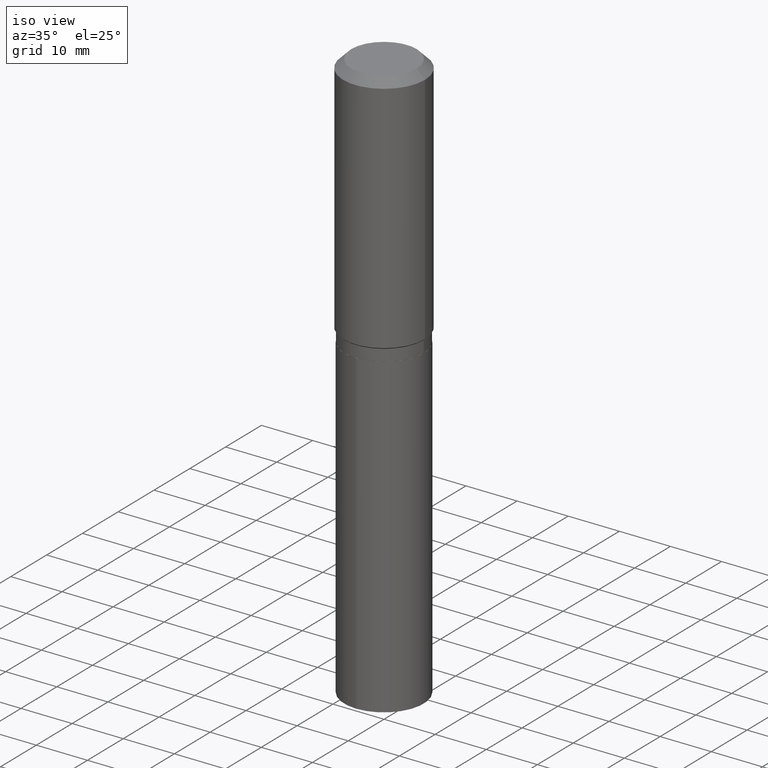
[diagram: clean part render]
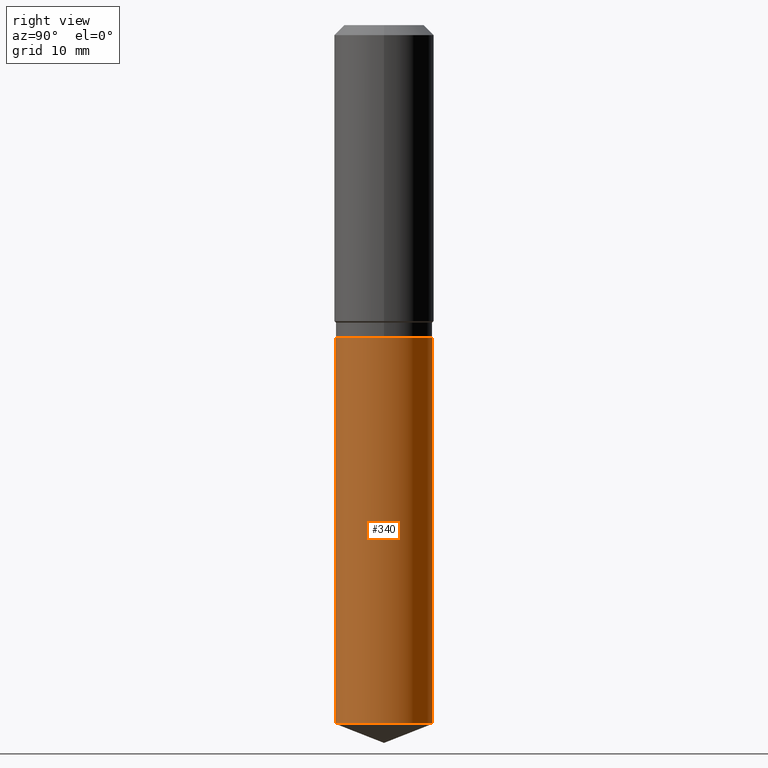
[diagram: tour spotlight — one face highlighted and labeled with its STEP entity id]
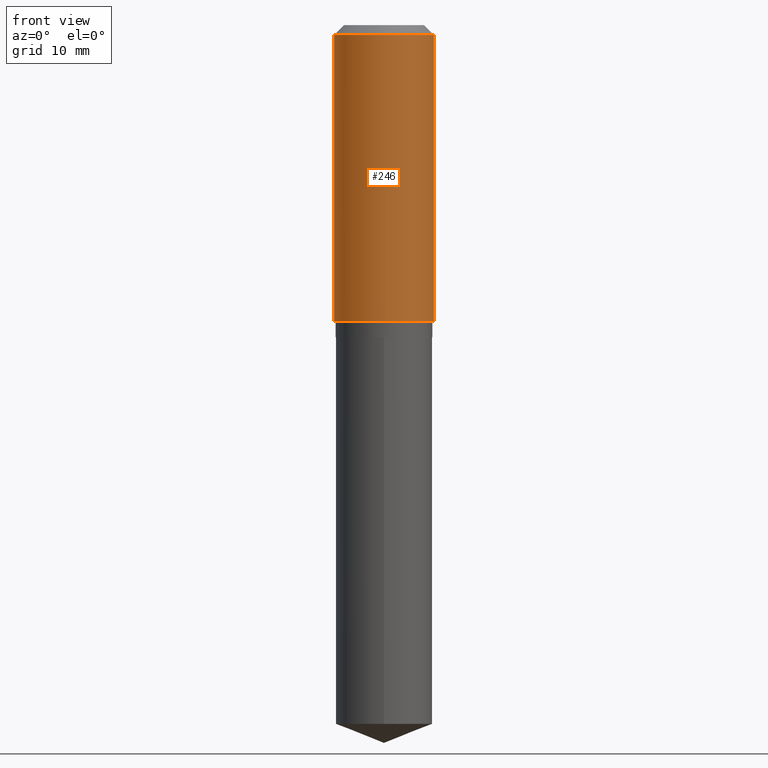
[diagram: tour spotlight — one face highlighted and labeled with its STEP entity id]
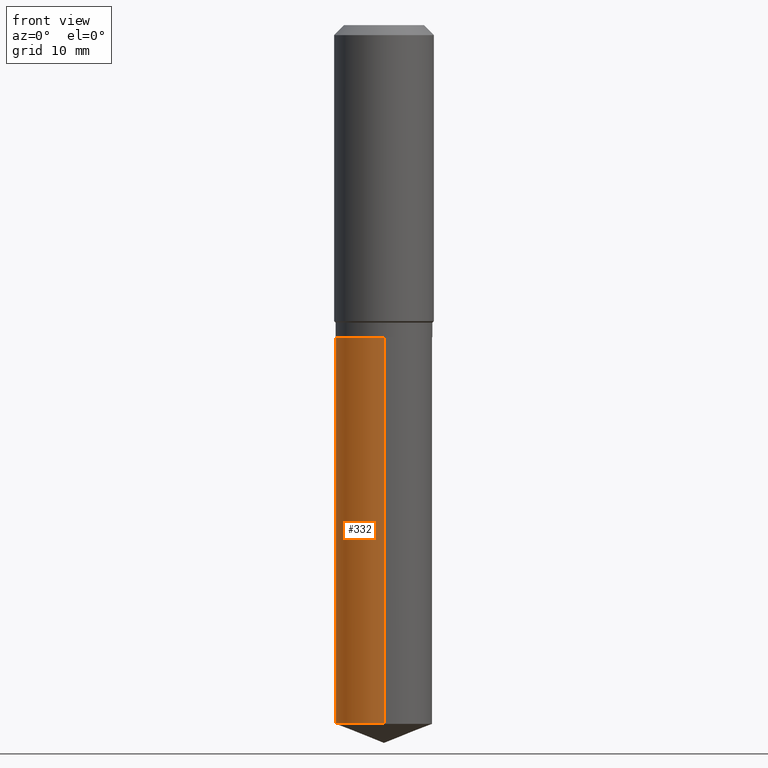
[diagram: tour spotlight — one face highlighted and labeled with its STEP entity id]
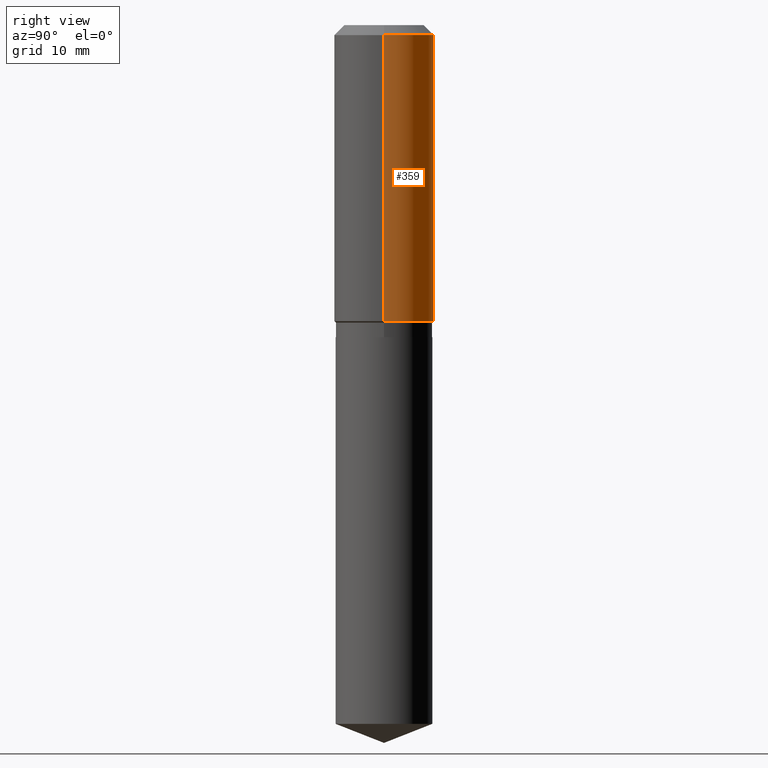
[diagram: tour spotlight — one face highlighted and labeled with its STEP entity id]
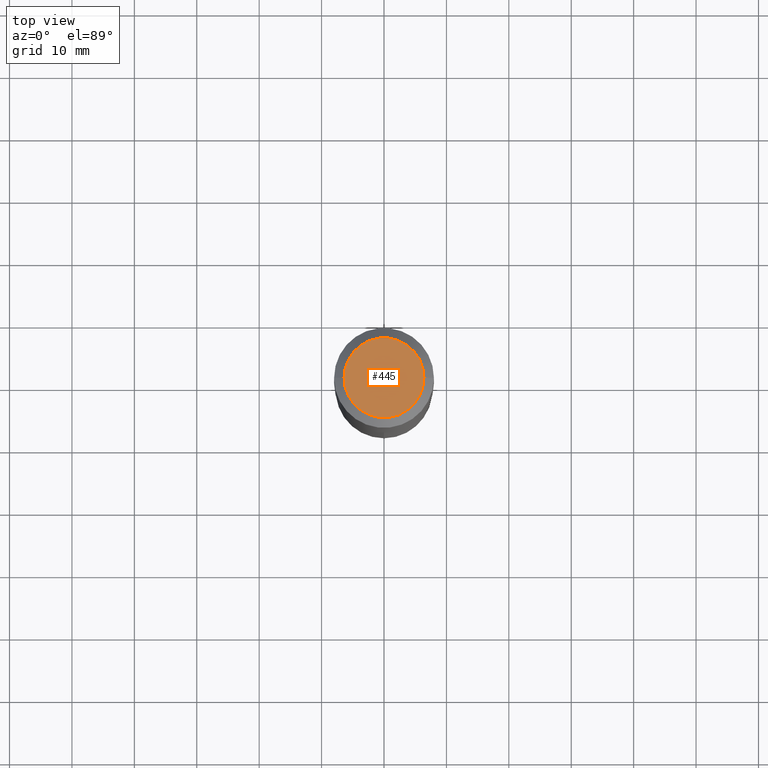
[diagram: tour spotlight — one face highlighted and labeled with its STEP entity id]
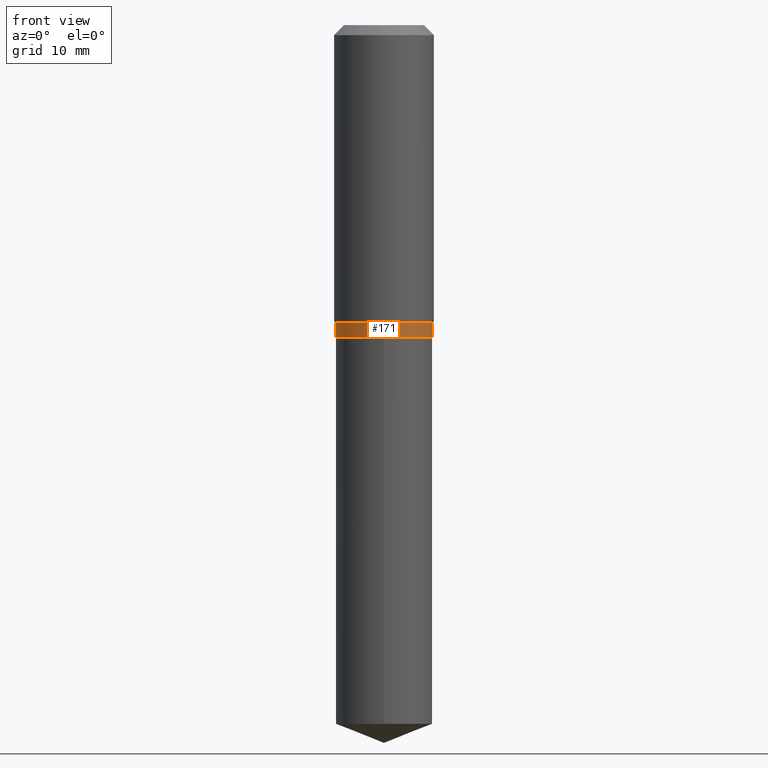
[diagram: tour spotlight — one face highlighted and labeled with its STEP entity id]
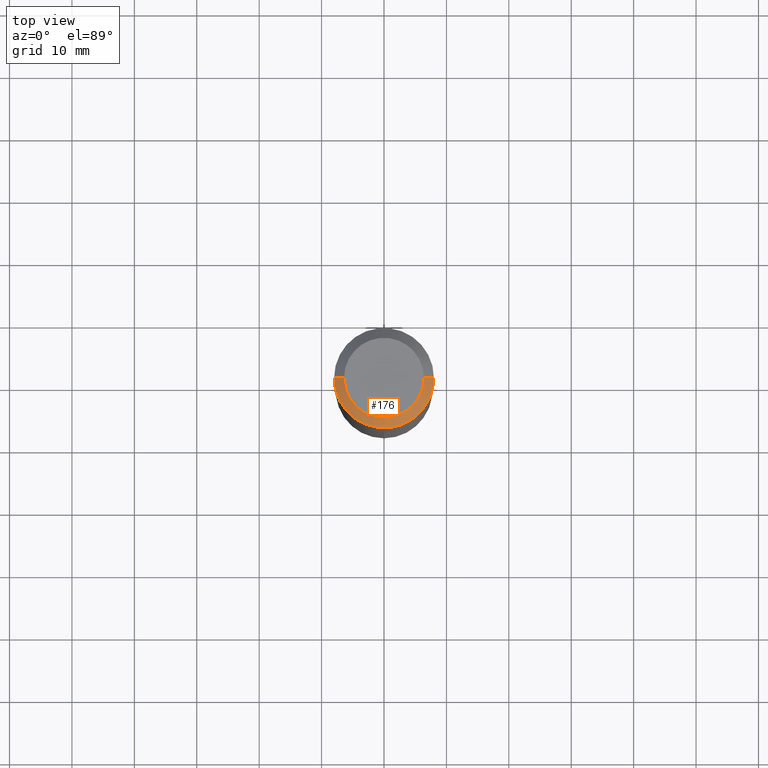
[diagram: tour spotlight — one face highlighted and labeled with its STEP entity id]
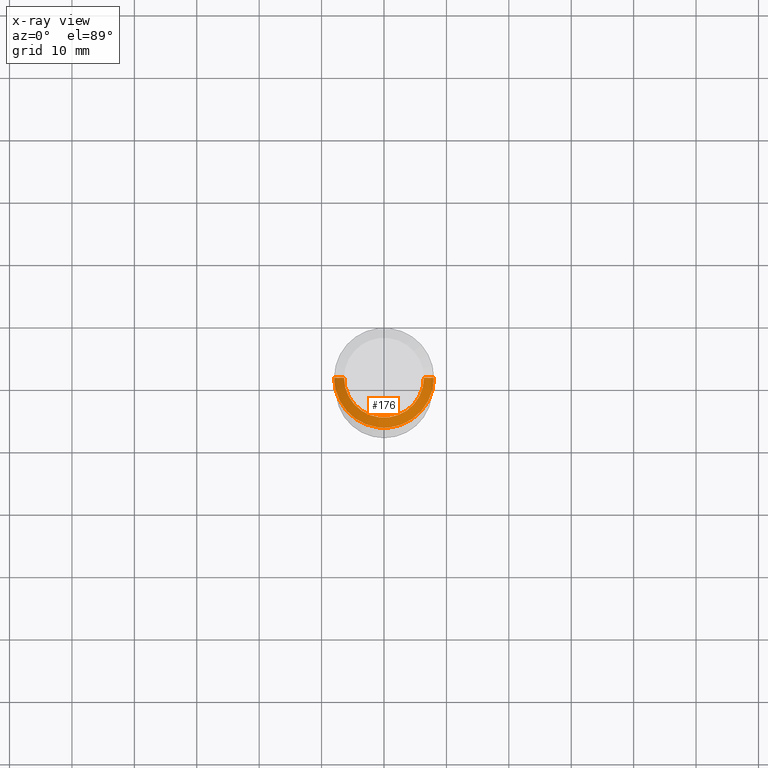
[diagram: x-ray of the same camera — body ghosted, this tour face saturated]
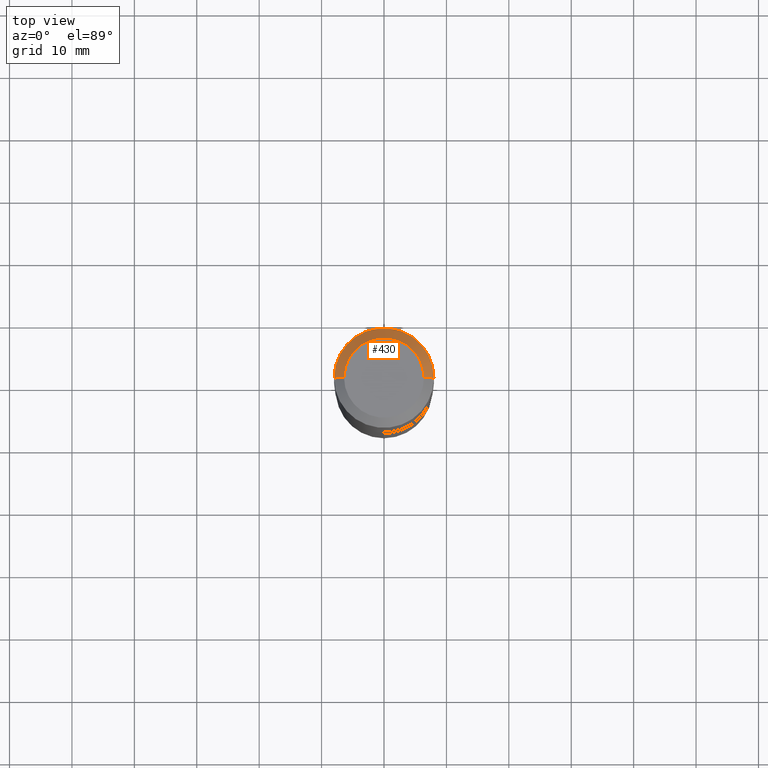
[diagram: tour spotlight — one face highlighted and labeled with its STEP entity id]
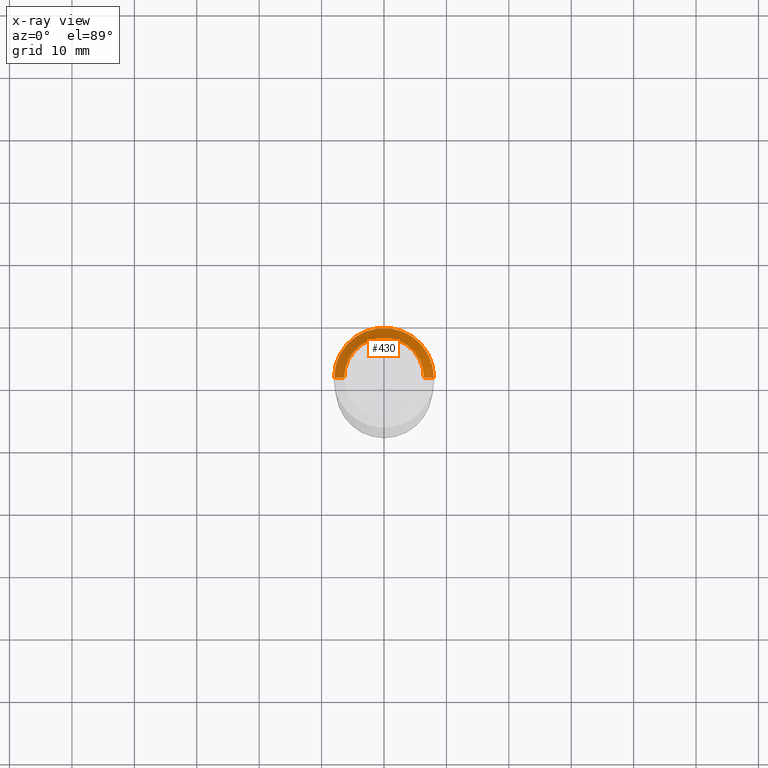
[diagram: x-ray of the same camera — body ghosted, this tour face saturated]
A machine part: a face-by-face anatomy tour. The part has 17 B-rep faces; the first image is the clean iso view, then the 8 largest visible faces are spotlighted one at a time (largest first), each with its STEP entity span.

Face 1 — right view, entity #340. In plain terms, the highlighted cylindrical surface (partial cylindrical patch) has radius 7.7495 mm, axis along (-0, 0, 1).
Definition (entity closure, byte-faithful):
#4 = ORIENTED_EDGE ( 'NONE', *, *, #351, .F. ) ;
#8 = CIRCLE ( 'NONE', #132, 0.3050999999999999823 ) ;
#9 = DIRECTION ( 'NONE',  ( -2.445510039064079162E-29, 3.491422291013670313E-15, 1.000000000000000000 ) ) ;
#31 = VECTOR ( 'NONE', #325, 39.37007874015748143 ) ;
#40 = EDGE_LOOP ( 'NONE', ( #238, #378, #98, #4 ) ) ;
#42 = CARTESIAN_POINT ( 'NONE',  ( 4.813905344975440153E-29, -6.872981015512730130E-15, -1.968499999999999472 ) ) ;
#60 = LINE ( 'NONE', #248, #31 ) ;
#74 = VECTOR ( 'NONE', #480, 39.37007874015748143 ) ;
#87 = FACE_OUTER_BOUND ( 'NONE', #40, .T. ) ;
#98 = ORIENTED_EDGE ( 'NONE', *, *, #200, .F. ) ;
#105 = CIRCLE ( 'NONE', #159, 0.3050999999999999823 ) ;
#131 = DIRECTION ( 'NONE',  ( -6.982962677686265133E-15, -1.000000000000000000, 3.581577179500837048E-15 ) ) ;
#132 = AXIS2_PLACEMENT_3D ( 'NONE', #370, #245, #434 ) ;
#138 = CARTESIAN_POINT ( 'NONE',  ( 2.167865886804172432E-15, 0.3050999999999845502, -4.407417913889882577 ) ) ;
#140 = CARTESIAN_POINT ( 'NONE',  ( -2.130501912961971401E-15, -0.3051000000000153034, -4.407417913889880801 ) ) ;
#147 = CARTESIAN_POINT ( 'NONE',  ( -2.130501912962031354E-15, -0.3051000000000068657, -1.968499999999998362 ) ) ;
#159 = AXIS2_PLACEMENT_3D ( 'NONE', #42, #9, #131 ) ;
#182 = DIRECTION ( 'NONE',  ( -6.982962677686265133E-15, -1.000000000000000000, 3.581577179500837048E-15 ) ) ;
#200 = EDGE_CURVE ( 'NONE', #253, #489, #105, .T. ) ;
#238 = ORIENTED_EDGE ( 'NONE', *, *, #315, .T. ) ;
#240 = EDGE_CURVE ( 'NONE', #345, #489, #60, .T. ) ;
#241 = CYLINDRICAL_SURFACE ( 'NONE', #415, 0.3050999999999999823 ) ;
#245 = DIRECTION ( 'NONE',  ( -2.445510039064079162E-29, 3.491422291013670313E-15, 1.000000000000000000 ) ) ;
#248 = CARTESIAN_POINT ( 'NONE',  ( 2.167865886804113268E-15, 0.3050999999999930989, -1.968500000000000583 ) ) ;
#253 = VERTEX_POINT ( 'NONE', #438 ) ;
#262 = CARTESIAN_POINT ( 'NONE',  ( 2.167865886804173615E-15, 0.3050999999999930989, -1.968500000000000583 ) ) ;
#315 = EDGE_CURVE ( 'NONE', #450, #345, #8, .T. ) ;
#325 = DIRECTION ( 'NONE',  ( -2.445510039064079162E-29, 3.491422291013670313E-15, 1.000000000000000000 ) ) ;
#335 = DIRECTION ( 'NONE',  ( -2.445510039064079162E-29, 3.491422291013670313E-15, 1.000000000000000000 ) ) ;
#340 = ADVANCED_FACE ( 'NONE', ( #87 ), #241, .T. ) ;
#345 = VERTEX_POINT ( 'NONE', #138 ) ;
#351 = EDGE_CURVE ( 'NONE', #450, #253, #446, .T. ) ;
#370 = CARTESIAN_POINT ( 'NONE',  ( 1.077830358784636667E-28, -1.538827338602042201E-14, -4.407417913889881689 ) ) ;
#378 = ORIENTED_EDGE ( 'NONE', *, *, #240, .T. ) ;
#415 = AXIS2_PLACEMENT_3D ( 'NONE', #476, #335, #182 ) ;
#434 = DIRECTION ( 'NONE',  ( -6.982962677686265133E-15, -1.000000000000000000, 3.581577179500837048E-15 ) ) ;
#438 = CARTESIAN_POINT ( 'NONE',  ( -2.130501912962031354E-15, -0.3051000000000068657, -1.968499999999998362 ) ) ;
#446 = LINE ( 'NONE', #147, #74 ) ;
#450 = VERTEX_POINT ( 'NONE', #140 ) ;
#476 = CARTESIAN_POINT ( 'NONE',  ( 4.813905344975440153E-29, -6.872981015512730130E-15, -1.968499999999999472 ) ) ;
#480 = DIRECTION ( 'NONE',  ( -2.445510039064079162E-29, 3.491422291013670313E-15, 1.000000000000000000 ) ) ;
#489 = VERTEX_POINT ( 'NONE', #262 ) ;

Face 2 — front view, entity #246. In plain terms, the highlighted cylindrical surface (partial cylindrical patch) has radius 7.9997 mm, axis along (-0, 0, 1).
Definition (entity closure, byte-faithful):
#15 = DIRECTION ( 'NONE',  ( 1.000000000000000000, -6.982962677686265922E-15, 4.876176775795935232E-29 ) ) ;
#16 = VECTOR ( 'NONE', #50, 39.37007874015748143 ) ;
#18 = CARTESIAN_POINT ( 'NONE',  ( -0.3149500000000002298, -4.281265035544539989E-15, -1.867149999999999421 ) ) ;
#32 = DIRECTION ( 'NONE',  ( -2.445468806185136877E-29, 3.491481338843145188E-15, 1.000000000000000000 ) ) ;
#43 = EDGE_CURVE ( 'NONE', #485, #380, #397, .T. ) ;
#50 = DIRECTION ( 'NONE',  ( -2.445468806185136877E-29, 3.491481338843145188E-15, 1.000000000000000000 ) ) ;
#61 = EDGE_CURVE ( 'NONE', #418, #380, #284, .T. ) ;
#62 = CARTESIAN_POINT ( 'NONE',  ( -0.3149500000000001743, 2.237854346276436774E-15, -1.549218606675783237E-29 ) ) ;
#63 = ORIENTED_EDGE ( 'NONE', *, *, #324, .T. ) ;
#82 = AXIS2_PLACEMENT_3D ( 'NONE', #174, #244, #402 ) ;
#88 = CYLINDRICAL_SURFACE ( 'NONE', #314, 0.3149500000000001743 ) ;
#96 = VECTOR ( 'NONE', #32, 39.37007874015748143 ) ;
#110 = CARTESIAN_POINT ( 'NONE',  ( 0.3149500000000002298, -8.718403477158267422E-15, -1.867149999999999421 ) ) ;
#122 = DIRECTION ( 'NONE',  ( 1.000000000000000000, -6.982962677686266711E-15, 0.000000000000000000 ) ) ;
#174 = CARTESIAN_POINT ( 'NONE',  ( 4.566057081468576714E-29, -6.519119381820977551E-15, -1.867149999999999421 ) ) ;
#197 = AXIS2_PLACEMENT_3D ( 'NONE', #239, #465, #122 ) ;
#208 = DIRECTION ( 'NONE',  ( -2.445468806185136597E-29, 3.491481338843145583E-15, 1.000000000000000000 ) ) ;
#218 = EDGE_LOOP ( 'NONE', ( #330, #63, #301, #281 ) ) ;
#219 = CARTESIAN_POINT ( 'NONE',  ( 0.3149500000000000077, -2.419212504871020909E-15, -0.06299000000000036514 ) ) ;
#239 = CARTESIAN_POINT ( 'NONE',  ( 1.540400801016026329E-30, -2.199284095337310135E-16, -0.06299000000000036514 ) ) ;
#244 = DIRECTION ( 'NONE',  ( -2.445468806185136597E-29, 3.491481338843145583E-15, 1.000000000000000000 ) ) ;
#246 = ADVANCED_FACE ( 'NONE', ( #283 ), #88, .T. ) ;
#252 = CARTESIAN_POINT ( 'NONE',  ( -0.3149500000000000077, -1.131669549400917718E-15, -0.06299000000000036514 ) ) ;
#281 = ORIENTED_EDGE ( 'NONE', *, *, #61, .F. ) ;
#283 = FACE_OUTER_BOUND ( 'NONE', #218, .T. ) ;
#284 = CIRCLE ( 'NONE', #197, 0.3149500000000000077 ) ;
#295 = VERTEX_POINT ( 'NONE', #18 ) ;
#301 = ORIENTED_EDGE ( 'NONE', *, *, #43, .T. ) ;
#304 = CIRCLE ( 'NONE', #82, 0.3149500000000002298 ) ;
#314 = AXIS2_PLACEMENT_3D ( 'NONE', #401, #208, #15 ) ;
#324 = EDGE_CURVE ( 'NONE', #295, #485, #304, .T. ) ;
#330 = ORIENTED_EDGE ( 'NONE', *, *, #346, .F. ) ;
#337 = LINE ( 'NONE', #62, #96 ) ;
#346 = EDGE_CURVE ( 'NONE', #295, #418, #337, .T. ) ;
#380 = VERTEX_POINT ( 'NONE', #219 ) ;
#397 = LINE ( 'NONE', #429, #16 ) ;
#401 = CARTESIAN_POINT ( 'NONE',  ( 0.000000000000000000, 0.000000000000000000, 0.000000000000000000 ) ) ;
#402 = DIRECTION ( 'NONE',  ( 1.000000000000000000, -6.982962677686268288E-15, 0.000000000000000000 ) ) ;
#418 = VERTEX_POINT ( 'NONE', #252 ) ;
#429 = CARTESIAN_POINT ( 'NONE',  ( 0.3149500000000001743, -2.199284095337290660E-15, 1.535751875536930690E-29 ) ) ;
#465 = DIRECTION ( 'NONE',  ( -2.445468806185136597E-29, 3.491481338843145583E-15, 1.000000000000000000 ) ) ;
#485 = VERTEX_POINT ( 'NONE', #110 ) ;

Face 3 — front view, entity #332. In plain terms, the highlighted cylindrical surface (partial cylindrical patch) has radius 7.7495 mm, axis along (-0, 0, 1).
Definition (entity closure, byte-faithful):
#21 = CYLINDRICAL_SURFACE ( 'NONE', #259, 0.3050999999999999823 ) ;
#30 = ORIENTED_EDGE ( 'NONE', *, *, #483, .F. ) ;
#31 = VECTOR ( 'NONE', #325, 39.37007874015748143 ) ;
#36 = DIRECTION ( 'NONE',  ( -2.445510039064079162E-29, 3.491422291013670313E-15, 1.000000000000000000 ) ) ;
#60 = LINE ( 'NONE', #248, #31 ) ;
#74 = VECTOR ( 'NONE', #480, 39.37007874015748143 ) ;
#84 = AXIS2_PLACEMENT_3D ( 'NONE', #307, #36, #458 ) ;
#116 = EDGE_LOOP ( 'NONE', ( #408, #220, #336, #30 ) ) ;
#129 = EDGE_CURVE ( 'NONE', #345, #450, #180, .T. ) ;
#138 = CARTESIAN_POINT ( 'NONE',  ( 2.167865886804172432E-15, 0.3050999999999845502, -4.407417913889882577 ) ) ;
#140 = CARTESIAN_POINT ( 'NONE',  ( -2.130501912961971401E-15, -0.3051000000000153034, -4.407417913889880801 ) ) ;
#147 = CARTESIAN_POINT ( 'NONE',  ( -2.130501912962031354E-15, -0.3051000000000068657, -1.968499999999998362 ) ) ;
#172 = CARTESIAN_POINT ( 'NONE',  ( 4.813905344975440153E-29, -6.872981015512730130E-15, -1.968499999999999472 ) ) ;
#180 = CIRCLE ( 'NONE', #258, 0.3050999999999999823 ) ;
#189 = CIRCLE ( 'NONE', #84, 0.3050999999999999823 ) ;
#199 = CARTESIAN_POINT ( 'NONE',  ( 1.077830358784636667E-28, -1.538827338602042201E-14, -4.407417913889881689 ) ) ;
#220 = ORIENTED_EDGE ( 'NONE', *, *, #129, .T. ) ;
#240 = EDGE_CURVE ( 'NONE', #345, #489, #60, .T. ) ;
#248 = CARTESIAN_POINT ( 'NONE',  ( 2.167865886804113268E-15, 0.3050999999999930989, -1.968500000000000583 ) ) ;
#253 = VERTEX_POINT ( 'NONE', #438 ) ;
#258 = AXIS2_PLACEMENT_3D ( 'NONE', #199, #350, #461 ) ;
#259 = AXIS2_PLACEMENT_3D ( 'NONE', #172, #328, #474 ) ;
#262 = CARTESIAN_POINT ( 'NONE',  ( 2.167865886804173615E-15, 0.3050999999999930989, -1.968500000000000583 ) ) ;
#307 = CARTESIAN_POINT ( 'NONE',  ( 4.813905344975440153E-29, -6.872981015512730130E-15, -1.968499999999999472 ) ) ;
#325 = DIRECTION ( 'NONE',  ( -2.445510039064079162E-29, 3.491422291013670313E-15, 1.000000000000000000 ) ) ;
#328 = DIRECTION ( 'NONE',  ( -2.445510039064079162E-29, 3.491422291013670313E-15, 1.000000000000000000 ) ) ;
#332 = ADVANCED_FACE ( 'NONE', ( #367 ), #21, .T. ) ;
#336 = ORIENTED_EDGE ( 'NONE', *, *, #351, .T. ) ;
#345 = VERTEX_POINT ( 'NONE', #138 ) ;
#350 = DIRECTION ( 'NONE',  ( -2.445510039064079162E-29, 3.491422291013670313E-15, 1.000000000000000000 ) ) ;
#351 = EDGE_CURVE ( 'NONE', #450, #253, #446, .T. ) ;
#367 = FACE_OUTER_BOUND ( 'NONE', #116, .T. ) ;
#408 = ORIENTED_EDGE ( 'NONE', *, *, #240, .F. ) ;
#438 = CARTESIAN_POINT ( 'NONE',  ( -2.130501912962031354E-15, -0.3051000000000068657, -1.968499999999998362 ) ) ;
#446 = LINE ( 'NONE', #147, #74 ) ;
#450 = VERTEX_POINT ( 'NONE', #140 ) ;
#458 = DIRECTION ( 'NONE',  ( -6.982962677686265133E-15, -1.000000000000000000, 3.581577179500837048E-15 ) ) ;
#461 = DIRECTION ( 'NONE',  ( -6.982962677686265133E-15, -1.000000000000000000, 3.581577179500837048E-15 ) ) ;
#474 = DIRECTION ( 'NONE',  ( -6.982962677686265133E-15, -1.000000000000000000, 3.581577179500837048E-15 ) ) ;
#480 = DIRECTION ( 'NONE',  ( -2.445510039064079162E-29, 3.491422291013670313E-15, 1.000000000000000000 ) ) ;
#483 = EDGE_CURVE ( 'NONE', #489, #253, #189, .T. ) ;
#489 = VERTEX_POINT ( 'NONE', #262 ) ;

Face 4 — right view, entity #359. In plain terms, the highlighted cylindrical surface (partial cylindrical patch) has radius 7.9997 mm, axis along (-0, 0, 1).
Definition (entity closure, byte-faithful):
#16 = VECTOR ( 'NONE', #50, 39.37007874015748143 ) ;
#18 = CARTESIAN_POINT ( 'NONE',  ( -0.3149500000000002298, -4.281265035544539989E-15, -1.867149999999999421 ) ) ;
#32 = DIRECTION ( 'NONE',  ( -2.445468806185136877E-29, 3.491481338843145188E-15, 1.000000000000000000 ) ) ;
#43 = EDGE_CURVE ( 'NONE', #485, #380, #397, .T. ) ;
#50 = DIRECTION ( 'NONE',  ( -2.445468806185136877E-29, 3.491481338843145188E-15, 1.000000000000000000 ) ) ;
#56 = AXIS2_PLACEMENT_3D ( 'NONE', #311, #235, #358 ) ;
#62 = CARTESIAN_POINT ( 'NONE',  ( -0.3149500000000001743, 2.237854346276436774E-15, -1.549218606675783237E-29 ) ) ;
#65 = EDGE_LOOP ( 'NONE', ( #192, #100, #225, #141 ) ) ;
#72 = DIRECTION ( 'NONE',  ( 1.000000000000000000, -6.982962677686265922E-15, 4.876176775795935232E-29 ) ) ;
#96 = VECTOR ( 'NONE', #32, 39.37007874015748143 ) ;
#100 = ORIENTED_EDGE ( 'NONE', *, *, #346, .T. ) ;
#110 = CARTESIAN_POINT ( 'NONE',  ( 0.3149500000000002298, -8.718403477158267422E-15, -1.867149999999999421 ) ) ;
#117 = EDGE_CURVE ( 'NONE', #485, #295, #205, .T. ) ;
#141 = ORIENTED_EDGE ( 'NONE', *, *, #43, .F. ) ;
#150 = EDGE_CURVE ( 'NONE', #380, #418, #342, .T. ) ;
#192 = ORIENTED_EDGE ( 'NONE', *, *, #117, .T. ) ;
#205 = CIRCLE ( 'NONE', #56, 0.3149500000000002298 ) ;
#219 = CARTESIAN_POINT ( 'NONE',  ( 0.3149500000000000077, -2.419212504871020909E-15, -0.06299000000000036514 ) ) ;
#223 = CYLINDRICAL_SURFACE ( 'NONE', #305, 0.3149500000000001743 ) ;
#225 = ORIENTED_EDGE ( 'NONE', *, *, #150, .F. ) ;
#235 = DIRECTION ( 'NONE',  ( -2.445468806185136597E-29, 3.491481338843145583E-15, 1.000000000000000000 ) ) ;
#252 = CARTESIAN_POINT ( 'NONE',  ( -0.3149500000000000077, -1.131669549400917718E-15, -0.06299000000000036514 ) ) ;
#295 = VERTEX_POINT ( 'NONE', #18 ) ;
#305 = AXIS2_PLACEMENT_3D ( 'NONE', #409, #411, #72 ) ;
#311 = CARTESIAN_POINT ( 'NONE',  ( 4.566057081468576714E-29, -6.519119381820977551E-15, -1.867149999999999421 ) ) ;
#313 = CARTESIAN_POINT ( 'NONE',  ( 1.540400801016026329E-30, -2.199284095337310135E-16, -0.06299000000000036514 ) ) ;
#337 = LINE ( 'NONE', #62, #96 ) ;
#342 = CIRCLE ( 'NONE', #469, 0.3149500000000000077 ) ;
#346 = EDGE_CURVE ( 'NONE', #295, #418, #337, .T. ) ;
#353 = DIRECTION ( 'NONE',  ( 1.000000000000000000, -6.982962677686266711E-15, 0.000000000000000000 ) ) ;
#358 = DIRECTION ( 'NONE',  ( 1.000000000000000000, -6.982962677686268288E-15, 0.000000000000000000 ) ) ;
#359 = ADVANCED_FACE ( 'NONE', ( #373 ), #223, .T. ) ;
#373 = FACE_OUTER_BOUND ( 'NONE', #65, .T. ) ;
#380 = VERTEX_POINT ( 'NONE', #219 ) ;
#393 = DIRECTION ( 'NONE',  ( -2.445468806185136597E-29, 3.491481338843145583E-15, 1.000000000000000000 ) ) ;
#397 = LINE ( 'NONE', #429, #16 ) ;
#409 = CARTESIAN_POINT ( 'NONE',  ( 0.000000000000000000, 0.000000000000000000, 0.000000000000000000 ) ) ;
#411 = DIRECTION ( 'NONE',  ( -2.445468806185136597E-29, 3.491481338843145583E-15, 1.000000000000000000 ) ) ;
#418 = VERTEX_POINT ( 'NONE', #252 ) ;
#429 = CARTESIAN_POINT ( 'NONE',  ( 0.3149500000000001743, -2.199284095337290660E-15, 1.535751875536930690E-29 ) ) ;
#469 = AXIS2_PLACEMENT_3D ( 'NONE', #313, #393, #353 ) ;
#485 = VERTEX_POINT ( 'NONE', #110 ) ;

Face 5 — top view, entity #445. In plain terms, the highlighted planar face has unit normal (0, -0, -1).
Definition (entity closure, byte-faithful):
#2 = CARTESIAN_POINT ( 'NONE',  ( 0.2519600000000000173, -2.054606664725195058E-15, 3.855188123729206640E-18 ) ) ;
#6 = ORIENTED_EDGE ( 'NONE', *, *, #400, .T. ) ;
#29 = ORIENTED_EDGE ( 'NONE', *, *, #86, .T. ) ;
#41 = DIRECTION ( 'NONE',  ( 1.000000000000000000, -6.982962677686266711E-15, 4.876115136096691995E-29 ) ) ;
#58 = AXIS2_PLACEMENT_3D ( 'NONE', #154, #201, #41 ) ;
#86 = EDGE_CURVE ( 'NONE', #179, #343, #269, .T. ) ;
#154 = CARTESIAN_POINT ( 'NONE',  ( -9.427742298522569579E-47, 1.346031739168368629E-32, 3.855188123715871501E-18 ) ) ;
#173 = AXIS2_PLACEMENT_3D ( 'NONE', #419, #186, #299 ) ;
#179 = VERTEX_POINT ( 'NONE', #234 ) ;
#186 = DIRECTION ( 'NONE',  ( -2.445468806185136597E-29, 3.491481338843145583E-15, 1.000000000000000000 ) ) ;
#201 = DIRECTION ( 'NONE',  ( -2.445468806185136597E-29, 3.491481338843145583E-15, 1.000000000000000000 ) ) ;
#206 = CIRCLE ( 'NONE', #173, 0.2519600000000000173 ) ;
#217 = FACE_OUTER_BOUND ( 'NONE', #448, .T. ) ;
#221 = CARTESIAN_POINT ( 'NONE',  ( -4.713871149261284790E-47, 6.730158695841843144E-33, 1.927594061857935750E-18 ) ) ;
#234 = CARTESIAN_POINT ( 'NONE',  ( -0.2519600000000000173, 1.869391481036695286E-15, 3.855188123703182704E-18 ) ) ;
#269 = CIRCLE ( 'NONE', #58, 0.2519600000000000173 ) ;
#299 = DIRECTION ( 'NONE',  ( 1.000000000000000000, -6.982962677686266711E-15, 4.876115136096691995E-29 ) ) ;
#343 = VERTEX_POINT ( 'NONE', #2 ) ;
#354 = AXIS2_PLACEMENT_3D ( 'NONE', #221, #454, #449 ) ;
#377 = PLANE ( 'NONE',  #354 ) ;
#400 = EDGE_CURVE ( 'NONE', #343, #179, #206, .T. ) ;
#419 = CARTESIAN_POINT ( 'NONE',  ( -9.427742298522569579E-47, 1.346031739168368629E-32, 3.855188123715871501E-18 ) ) ;
#445 = ADVANCED_FACE ( 'NONE', ( #217 ), #377, .F. ) ;
#448 = EDGE_LOOP ( 'NONE', ( #29, #6 ) ) ;
#449 = DIRECTION ( 'NONE',  ( -1.000000000000000000, 6.982962677686265922E-15, -4.876176775795935793E-29 ) ) ;
#454 = DIRECTION ( 'NONE',  ( 2.438088387897960049E-29, -3.491481338843145188E-15, -1.000000000000000000 ) ) ;

Face 6 — front view, entity #171. In plain terms, the highlighted cylindrical surface (partial cylindrical patch) has radius 7.7495 mm, axis along (-0, 0, 1).
Definition (entity closure, byte-faithful):
#24 = EDGE_CURVE ( 'NONE', #447, #222, #321, .T. ) ;
#54 = VECTOR ( 'NONE', #422, 39.37007874015748143 ) ;
#73 = DIRECTION ( 'NONE',  ( 1.000000000000000000, -6.982962677686268288E-15, 0.000000000000000000 ) ) ;
#91 = EDGE_CURVE ( 'NONE', #447, #175, #271, .T. ) ;
#94 = EDGE_CURVE ( 'NONE', #175, #348, #441, .T. ) ;
#115 = DIRECTION ( 'NONE',  ( 1.000000000000000000, -6.982962677686265133E-15, 0.000000000000000000 ) ) ;
#118 = AXIS2_PLACEMENT_3D ( 'NONE', #263, #420, #73 ) ;
#123 = LINE ( 'NONE', #267, #54 ) ;
#135 = EDGE_CURVE ( 'NONE', #222, #348, #123, .T. ) ;
#162 = CARTESIAN_POINT ( 'NONE',  ( -0.3050999999999999823, 2.167865886804065542E-15, -1.500767096036771618E-29 ) ) ;
#165 = FACE_OUTER_BOUND ( 'NONE', #417, .T. ) ;
#167 = AXIS2_PLACEMENT_3D ( 'NONE', #320, #232, #425 ) ;
#171 = ADVANCED_FACE ( 'NONE', ( #165 ), #319, .T. ) ;
#175 = VERTEX_POINT ( 'NONE', #468 ) ;
#184 = CARTESIAN_POINT ( 'NONE',  ( -0.3050999999999999823, -4.544506987121881132E-15, -1.967999999999999527 ) ) ;
#203 = DIRECTION ( 'NONE',  ( -2.445468806185136597E-29, 3.491481338843145583E-15, 1.000000000000000000 ) ) ;
#204 = ORIENTED_EDGE ( 'NONE', *, *, #135, .T. ) ;
#213 = AXIS2_PLACEMENT_3D ( 'NONE', #467, #203, #115 ) ;
#215 = CARTESIAN_POINT ( 'NONE',  ( 0.3050999999999999823, -9.001737187805389679E-15, -1.967999999999999527 ) ) ;
#222 = VERTEX_POINT ( 'NONE', #215 ) ;
#232 = DIRECTION ( 'NONE',  ( -2.445468806185136597E-29, 3.491481338843145583E-15, 1.000000000000000000 ) ) ;
#250 = CARTESIAN_POINT ( 'NONE',  ( 0.3050999999999999823, -8.684012385970661829E-15, -1.876999999999999780 ) ) ;
#263 = CARTESIAN_POINT ( 'NONE',  ( 4.812682610572347912E-29, -6.871235274843308626E-15, -1.967999999999999527 ) ) ;
#267 = CARTESIAN_POINT ( 'NONE',  ( 0.3050999999999999823, -2.130501912962079869E-15, 1.487721534295339875E-29 ) ) ;
#271 = LINE ( 'NONE', #162, #399 ) ;
#319 = CYLINDRICAL_SURFACE ( 'NONE', #167, 0.3050999999999999823 ) ;
#320 = CARTESIAN_POINT ( 'NONE',  ( 0.000000000000000000, 0.000000000000000000, 0.000000000000000000 ) ) ;
#321 = CIRCLE ( 'NONE', #118, 0.3050999999999999823 ) ;
#348 = VERTEX_POINT ( 'NONE', #250 ) ;
#399 = VECTOR ( 'NONE', #463, 39.37007874015748143 ) ;
#412 = ORIENTED_EDGE ( 'NONE', *, *, #24, .T. ) ;
#417 = EDGE_LOOP ( 'NONE', ( #482, #412, #204, #486 ) ) ;
#420 = DIRECTION ( 'NONE',  ( -2.445468806185136597E-29, 3.491481338843145583E-15, 1.000000000000000000 ) ) ;
#422 = DIRECTION ( 'NONE',  ( -2.445468806185136877E-29, 3.491481338843145188E-15, 1.000000000000000000 ) ) ;
#425 = DIRECTION ( 'NONE',  ( 1.000000000000000000, -6.982962677686266711E-15, 4.876176775795935793E-29 ) ) ;
#441 = CIRCLE ( 'NONE', #213, 0.3050999999999999823 ) ;
#447 = VERTEX_POINT ( 'NONE', #184 ) ;
#463 = DIRECTION ( 'NONE',  ( -2.445468806185136877E-29, 3.491481338843145188E-15, 1.000000000000000000 ) ) ;
#467 = CARTESIAN_POINT ( 'NONE',  ( 4.590144949209500643E-29, -6.553510473008583144E-15, -1.876999999999999780 ) ) ;
#468 = CARTESIAN_POINT ( 'NONE',  ( -0.3050999999999999823, -4.544506987121881132E-15, -1.876999999999999780 ) ) ;
#482 = ORIENTED_EDGE ( 'NONE', *, *, #91, .F. ) ;
#486 = ORIENTED_EDGE ( 'NONE', *, *, #94, .F. ) ;

Face 7 — top view, entity #176. An x-ray twin of the same camera follows (body ghosted, this face saturated) — the face is partly hidden behind the body. In plain terms, the highlighted conical surface has half-angle 45 deg.
Definition (entity closure, byte-faithful):
#1 = AXIS2_PLACEMENT_3D ( 'NONE', #12, #79, #279 ) ;
#2 = CARTESIAN_POINT ( 'NONE',  ( 0.2519600000000000173, -2.054606664725195058E-15, 3.855188123729206640E-18 ) ) ;
#10 = EDGE_CURVE ( 'NONE', #343, #380, #152, .T. ) ;
#12 = CARTESIAN_POINT ( 'NONE',  ( 1.540400801016026329E-30, -2.199284095337310135E-16, -0.06299000000000036514 ) ) ;
#37 = ORIENTED_EDGE ( 'NONE', *, *, #61, .T. ) ;
#41 = DIRECTION ( 'NONE',  ( 1.000000000000000000, -6.982962677686266711E-15, 4.876115136096691995E-29 ) ) ;
#58 = AXIS2_PLACEMENT_3D ( 'NONE', #154, #201, #41 ) ;
#61 = EDGE_CURVE ( 'NONE', #418, #380, #284, .T. ) ;
#69 = EDGE_LOOP ( 'NONE', ( #306, #297, #490, #37 ) ) ;
#79 = DIRECTION ( 'NONE',  ( 2.445468806185136597E-29, -3.491481338843145583E-15, -1.000000000000000000 ) ) ;
#86 = EDGE_CURVE ( 'NONE', #179, #343, #269, .T. ) ;
#122 = DIRECTION ( 'NONE',  ( 1.000000000000000000, -6.982962677686266711E-15, 0.000000000000000000 ) ) ;
#136 = LINE ( 'NONE', #242, #394 ) ;
#152 = LINE ( 'NONE', #309, #361 ) ;
#154 = CARTESIAN_POINT ( 'NONE',  ( -9.427742298522569579E-47, 1.346031739168368629E-32, 3.855188123715871501E-18 ) ) ;
#170 = DIRECTION ( 'NONE',  ( -0.7071067811865453523, 2.468850131082234184E-15, -0.7071067811865496822 ) ) ;
#176 = ADVANCED_FACE ( 'NONE', ( #391 ), #188, .T. ) ;
#179 = VERTEX_POINT ( 'NONE', #234 ) ;
#188 = CONICAL_SURFACE ( 'NONE', #1, 0.3149500000000000077, 0.7853981633974452814 ) ;
#197 = AXIS2_PLACEMENT_3D ( 'NONE', #239, #465, #122 ) ;
#201 = DIRECTION ( 'NONE',  ( -2.445468806185136597E-29, 3.491481338843145583E-15, 1.000000000000000000 ) ) ;
#219 = CARTESIAN_POINT ( 'NONE',  ( 0.3149500000000000077, -2.419212504871020909E-15, -0.06299000000000036514 ) ) ;
#230 = EDGE_CURVE ( 'NONE', #179, #418, #136, .T. ) ;
#234 = CARTESIAN_POINT ( 'NONE',  ( -0.2519600000000000173, 1.869391481036695286E-15, 3.855188123703182704E-18 ) ) ;
#239 = CARTESIAN_POINT ( 'NONE',  ( 1.540400801016026329E-30, -2.199284095337310135E-16, -0.06299000000000036514 ) ) ;
#242 = CARTESIAN_POINT ( 'NONE',  ( -0.3149500000000000077, 1.979355685803558833E-15, -0.06299000000000036514 ) ) ;
#252 = CARTESIAN_POINT ( 'NONE',  ( -0.3149500000000000077, -1.131669549400917718E-15, -0.06299000000000036514 ) ) ;
#269 = CIRCLE ( 'NONE', #58, 0.2519600000000000173 ) ;
#279 = DIRECTION ( 'NONE',  ( -1.000000000000000000, 6.982962677686266711E-15, 0.000000000000000000 ) ) ;
#284 = CIRCLE ( 'NONE', #197, 0.3149500000000000077 ) ;
#297 = ORIENTED_EDGE ( 'NONE', *, *, #86, .F. ) ;
#306 = ORIENTED_EDGE ( 'NONE', *, *, #10, .F. ) ;
#309 = CARTESIAN_POINT ( 'NONE',  ( 0.3149500000000000077, -2.380642253931875190E-15, -0.06299000000000036514 ) ) ;
#343 = VERTEX_POINT ( 'NONE', #2 ) ;
#361 = VECTOR ( 'NONE', #459, 39.37007874015748143 ) ;
#380 = VERTEX_POINT ( 'NONE', #219 ) ;
#391 = FACE_OUTER_BOUND ( 'NONE', #69, .T. ) ;
#394 = VECTOR ( 'NONE', #170, 39.37007874015748143 ) ;
#418 = VERTEX_POINT ( 'NONE', #252 ) ;
#459 = DIRECTION ( 'NONE',  ( 0.7071067811865453523, -7.319954787623248157E-15, -0.7071067811865496822 ) ) ;
#465 = DIRECTION ( 'NONE',  ( -2.445468806185136597E-29, 3.491481338843145583E-15, 1.000000000000000000 ) ) ;
#490 = ORIENTED_EDGE ( 'NONE', *, *, #230, .T. ) ;

Face 8 — top view, entity #430. An x-ray twin of the same camera follows (body ghosted, this face saturated) — the face is partly hidden behind the body. In plain terms, the highlighted conical surface has half-angle 45 deg.
Definition (entity closure, byte-faithful):
#2 = CARTESIAN_POINT ( 'NONE',  ( 0.2519600000000000173, -2.054606664725195058E-15, 3.855188123729206640E-18 ) ) ;
#10 = EDGE_CURVE ( 'NONE', #343, #380, #152, .T. ) ;
#104 = ORIENTED_EDGE ( 'NONE', *, *, #230, .F. ) ;
#136 = LINE ( 'NONE', #242, #394 ) ;
#144 = CARTESIAN_POINT ( 'NONE',  ( 1.540400801016026329E-30, -2.199284095337310135E-16, -0.06299000000000036514 ) ) ;
#145 = EDGE_LOOP ( 'NONE', ( #443, #156, #191, #104 ) ) ;
#150 = EDGE_CURVE ( 'NONE', #380, #418, #342, .T. ) ;
#152 = LINE ( 'NONE', #309, #361 ) ;
#156 = ORIENTED_EDGE ( 'NONE', *, *, #10, .T. ) ;
#170 = DIRECTION ( 'NONE',  ( -0.7071067811865453523, 2.468850131082234184E-15, -0.7071067811865496822 ) ) ;
#173 = AXIS2_PLACEMENT_3D ( 'NONE', #419, #186, #299 ) ;
#178 = FACE_OUTER_BOUND ( 'NONE', #145, .T. ) ;
#179 = VERTEX_POINT ( 'NONE', #234 ) ;
#186 = DIRECTION ( 'NONE',  ( -2.445468806185136597E-29, 3.491481338843145583E-15, 1.000000000000000000 ) ) ;
#191 = ORIENTED_EDGE ( 'NONE', *, *, #150, .T. ) ;
#206 = CIRCLE ( 'NONE', #173, 0.2519600000000000173 ) ;
#219 = CARTESIAN_POINT ( 'NONE',  ( 0.3149500000000000077, -2.419212504871020909E-15, -0.06299000000000036514 ) ) ;
#230 = EDGE_CURVE ( 'NONE', #179, #418, #136, .T. ) ;
#234 = CARTESIAN_POINT ( 'NONE',  ( -0.2519600000000000173, 1.869391481036695286E-15, 3.855188123703182704E-18 ) ) ;
#242 = CARTESIAN_POINT ( 'NONE',  ( -0.3149500000000000077, 1.979355685803558833E-15, -0.06299000000000036514 ) ) ;
#252 = CARTESIAN_POINT ( 'NONE',  ( -0.3149500000000000077, -1.131669549400917718E-15, -0.06299000000000036514 ) ) ;
#299 = DIRECTION ( 'NONE',  ( 1.000000000000000000, -6.982962677686266711E-15, 4.876115136096691995E-29 ) ) ;
#302 = DIRECTION ( 'NONE',  ( 2.445468806185136597E-29, -3.491481338843145583E-15, -1.000000000000000000 ) ) ;
#309 = CARTESIAN_POINT ( 'NONE',  ( 0.3149500000000000077, -2.380642253931875190E-15, -0.06299000000000036514 ) ) ;
#313 = CARTESIAN_POINT ( 'NONE',  ( 1.540400801016026329E-30, -2.199284095337310135E-16, -0.06299000000000036514 ) ) ;
#341 = DIRECTION ( 'NONE',  ( -1.000000000000000000, 6.982962677686266711E-15, 0.000000000000000000 ) ) ;
#342 = CIRCLE ( 'NONE', #469, 0.3149500000000000077 ) ;
#343 = VERTEX_POINT ( 'NONE', #2 ) ;
#353 = DIRECTION ( 'NONE',  ( 1.000000000000000000, -6.982962677686266711E-15, 0.000000000000000000 ) ) ;
#361 = VECTOR ( 'NONE', #459, 39.37007874015748143 ) ;
#380 = VERTEX_POINT ( 'NONE', #219 ) ;
#393 = DIRECTION ( 'NONE',  ( -2.445468806185136597E-29, 3.491481338843145583E-15, 1.000000000000000000 ) ) ;
#394 = VECTOR ( 'NONE', #170, 39.37007874015748143 ) ;
#400 = EDGE_CURVE ( 'NONE', #343, #179, #206, .T. ) ;
#406 = AXIS2_PLACEMENT_3D ( 'NONE', #144, #302, #341 ) ;
#418 = VERTEX_POINT ( 'NONE', #252 ) ;
#419 = CARTESIAN_POINT ( 'NONE',  ( -9.427742298522569579E-47, 1.346031739168368629E-32, 3.855188123715871501E-18 ) ) ;
#430 = ADVANCED_FACE ( 'NONE', ( #178 ), #431, .T. ) ;
#431 = CONICAL_SURFACE ( 'NONE', #406, 0.3149500000000000077, 0.7853981633974452814 ) ;
#443 = ORIENTED_EDGE ( 'NONE', *, *, #400, .F. ) ;
#459 = DIRECTION ( 'NONE',  ( 0.7071067811865453523, -7.319954787623248157E-15, -0.7071067811865496822 ) ) ;
#469 = AXIS2_PLACEMENT_3D ( 'NONE', #313, #393, #353 ) ;